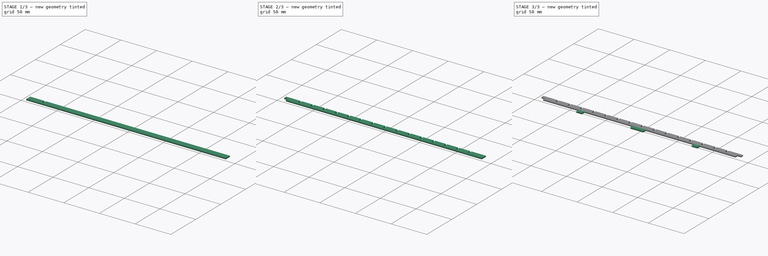
[diagram: build sequence overview — one tinted view per stage of 3, left to right]
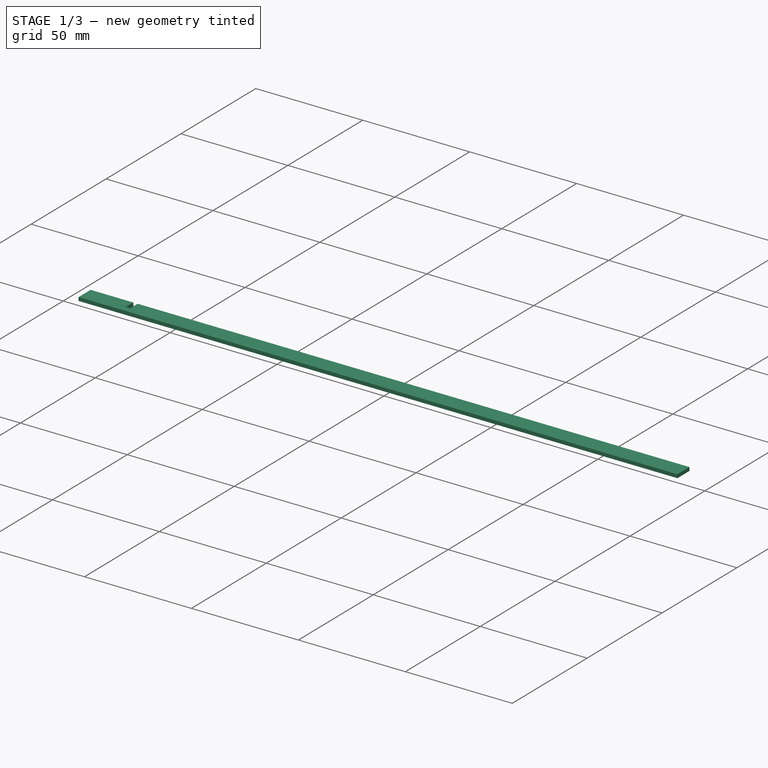
[diagram: stage 1 of 3 — iso view after this stage's code; geometry added in this stage tinted green]
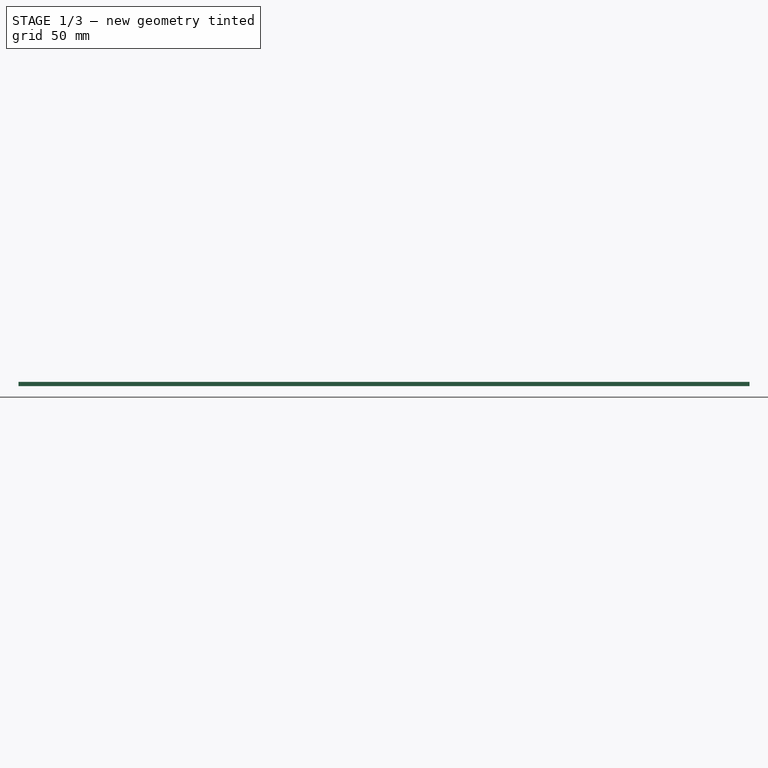
[diagram: stage 1 of 3 — front view after this stage's code; geometry added in this stage tinted green]
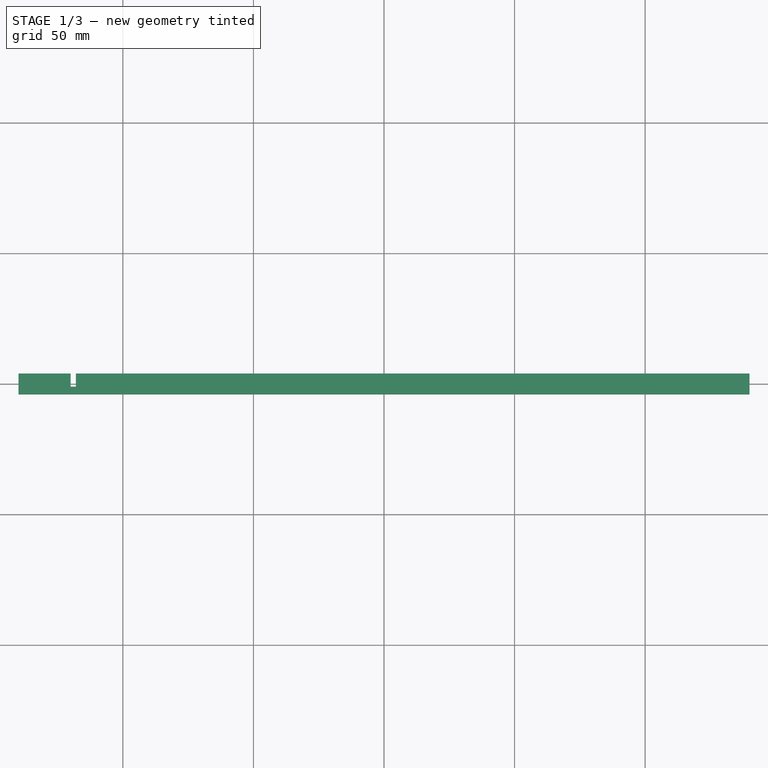
[diagram: stage 1 of 3 — top view after this stage's code; geometry added in this stage tinted green]
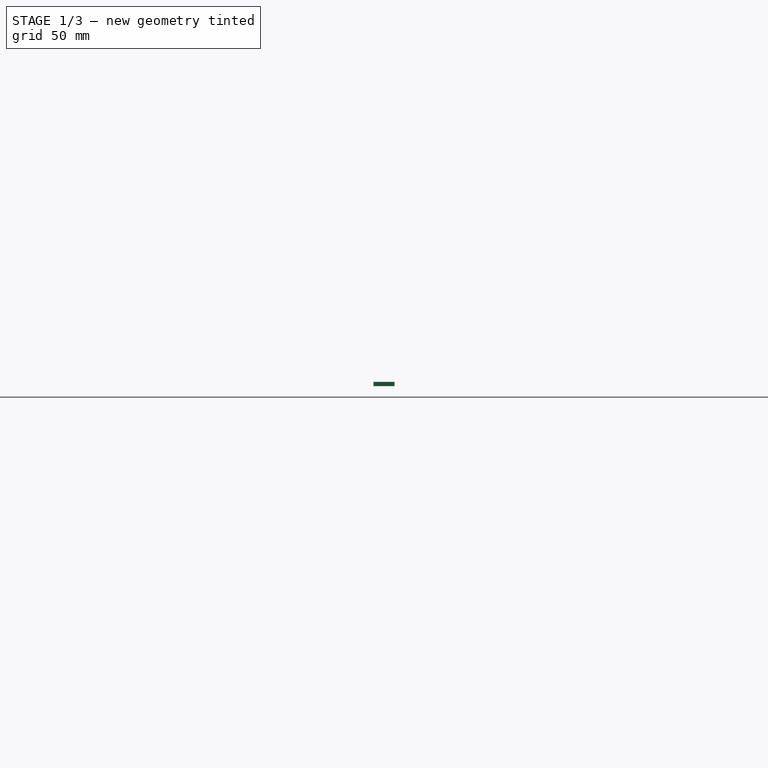
[diagram: stage 1 of 3 — right view after this stage's code; geometry added in this stage tinted green]
FCSTD DOCUMENT  (FreeCAD 2024.207R38947 (Git))
Label: frame_crisscross
License: All rights reserved
LicenseURL: https://en.wikipedia.org/wiki/All_rights_reserved
objects: Sketcher::SketchObject×4, PartDesign::Pad×2, PartDesign::Pocket×2, PartDesign::LinearPattern×2, PartDesign::Body×1
note: 27 computed .brp shape members not serialized (recipe doc carries the construction recipe); baked Part::Feature solids carry a one-line shape summary decoded from their .brp

FEATURE [Sketcher::SketchObject] Sketch  label="Crisscross-base"
  ArcFitTolerance = 1e-06
  AttachmentSupport = -> [XY_Plane]
  ExternalBSplineMaxDegree = 5
  ExternalBSplineTolerance = 0.0001
  FullyConstrained = true
  InternalTolerance = 1e-06
  InvalidShape = false
  MakeInternals = false
  MapMode = 5
  Support = -> [XY_Plane]
  TreeRank = 11
  ValidateShape = false
  sketch-geometry (4):
    g0: LineSegment StartX=-140 StartY=4 StartZ=0 EndX=140 EndY=4 EndZ=0
    g1: LineSegment StartX=140 StartY=4 StartZ=0 EndX=140 EndY=-4 EndZ=0
    g2: LineSegment StartX=140 StartY=-4 StartZ=0 EndX=-140 EndY=-4 EndZ=0
    g3: LineSegment StartX=-140 StartY=-4 StartZ=0 EndX=-140 EndY=4 EndZ=0
  constraints (10):
    c: Coincident(g0,g1)
    c: Coincident(g1,g2)
    c: Coincident(g2,g3)
    c: Coincident(g3,g0)
    c: Horizontal(g2)
    c: Vertical(g3)
    c: Symmetric(g0,g0,g-2)
    c: Symmetric(g0,g1,g-1)
    c: DistanceY(g2,g0) = 8
    c: DistanceX(g2,g1) = 280
FEATURE [PartDesign::Pad] Pad
  AddSubType = 0
  AlongSketchNormal = false
  AutoTaperInnerAngle = true
  CheckUpToFaceLimits = true
  ClaimChildren = false
  Direction = (0,0,1)
  Fit = 0
  FitJoin = 0
  InnerFit = 0
  InnerFitJoin = 0
  InvalidShape = false
  Length = 1.65
  Length2 = 10
  Linearize = true
  NewSolid = false
  Profile = -> Sketch
  ReferenceAxis = -> Sketch [N_Axis]
  Suppress = false
  TaperInnerAngle = 0
  TaperInnerAngleRev = 0
  TreeRank = 12
  Type = 0
  ValidateShape = true
  _ProfileBasedVersion = 1
  expr: Length = 2 - 0.35
FEATURE [Sketcher::SketchObject] Sketch001  label="Crisscross-cutouts"
  ArcFitTolerance = 1e-06
  AttachmentSupport = -> [Pad]
  ExternalBSplineMaxDegree = 5
  ExternalBSplineTolerance = 0.0001
  ExternalGeometry = -> [Pad]
  FullyConstrained = true
  InternalTolerance = 1e-06
  InvalidShape = false
  MakeInternals = false
  MapMode = 5
  Placement = pos=(0,0,1.65) rot=(0,0,1;0rad)
  Support = -> [Pad]
  TreeRank = 13
  ValidateShape = false
  sketch-geometry (4):
    g0: LineSegment StartX=-120 StartY=4 StartZ=0 EndX=-118 EndY=4 EndZ=0
    g1: LineSegment StartX=-118 StartY=4 StartZ=0 EndX=-118 EndY=-1 EndZ=0
    g2: LineSegment StartX=-118 StartY=-1 StartZ=0 EndX=-120 EndY=-1 EndZ=0
    g3: LineSegment StartX=-120 StartY=-1 StartZ=0 EndX=-120 EndY=4 EndZ=0
  constraints (12):
    c: Coincident(g0,g1)
    c: Coincident(g1,g2)
    c: Coincident(g2,g3)
    c: Coincident(g3,g0)
    c: Horizontal(g0)
    c: Horizontal(g2)
    c: Vertical(g1)
    c: Vertical(g3)
    c: DistanceX(g0,g0) = 2
    c: DistanceY(g1,g0) = 5
    c: PointOnObject(g0,g-3)
    c: DistanceX(g-4,g2) = 20
FEATURE [PartDesign::Pocket] Pocket
  AddSubType = 1
  AlongSketchNormal = false
  AutoTaperInnerAngle = true
  BaseFeature = -> Pad
  CheckUpToFaceLimits = true
  ClaimChildren = false
  Direction = (0,0,-1)
  Fit = 0
  FitJoin = 0
  InnerFit = 0
  InnerFitJoin = 0
  InvalidShape = false
  Length = 5
  Length2 = 10
  Linearize = true
  NewSolid = false
  Profile = -> Sketch001
  ReferenceAxis = -> Sketch001 [N_Axis]
  Suppress = false
  TaperInnerAngle = 0
  TaperInnerAngleRev = 0
  TreeRank = 14
  Type = 0
  ValidateShape = true
  _ProfileBasedVersion = 1
  _Version = 1
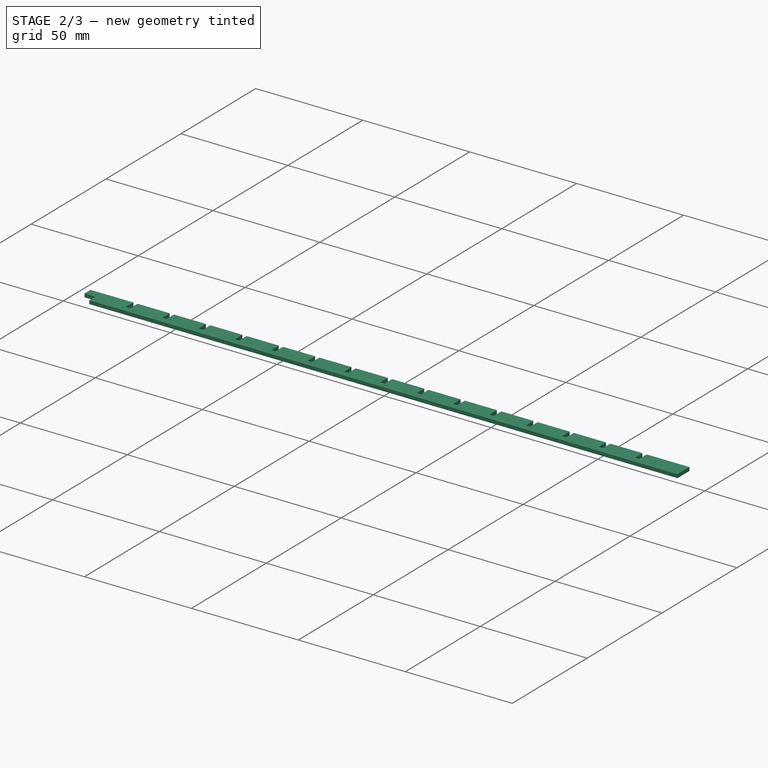
[diagram: stage 2 of 3 — iso view after this stage's code; geometry added in this stage tinted green]
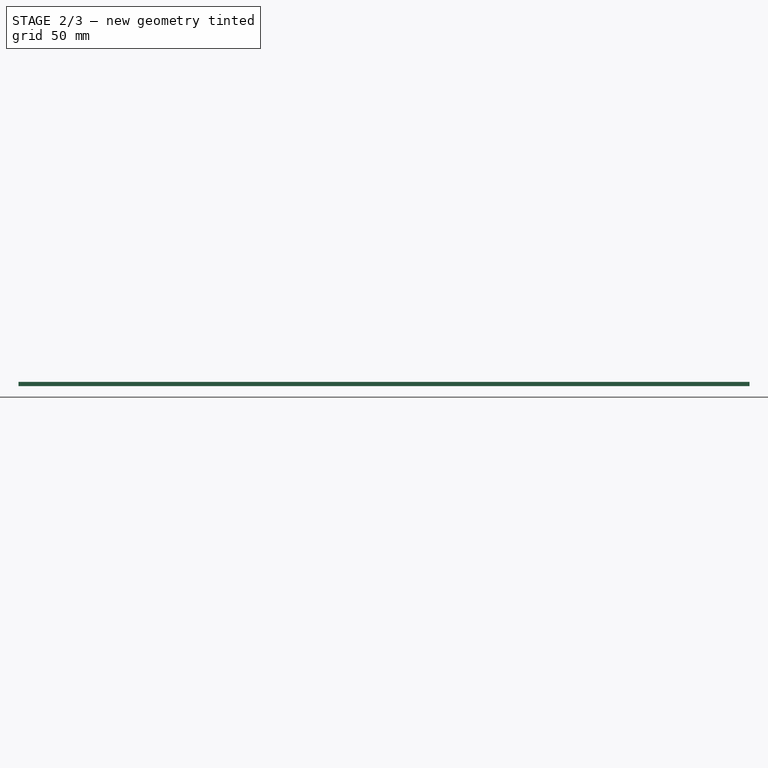
[diagram: stage 2 of 3 — front view after this stage's code; geometry added in this stage tinted green]
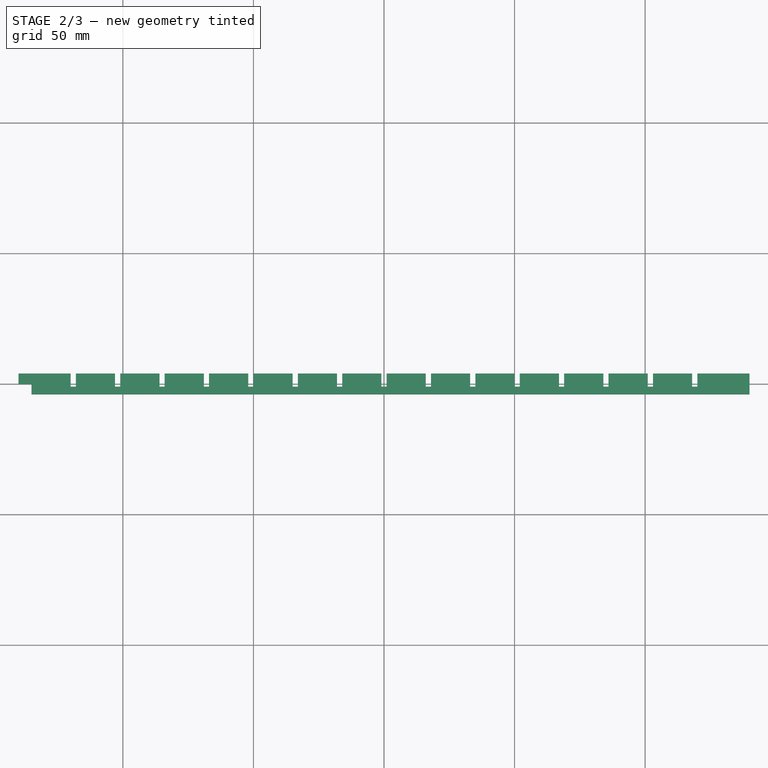
[diagram: stage 2 of 3 — top view after this stage's code; geometry added in this stage tinted green]
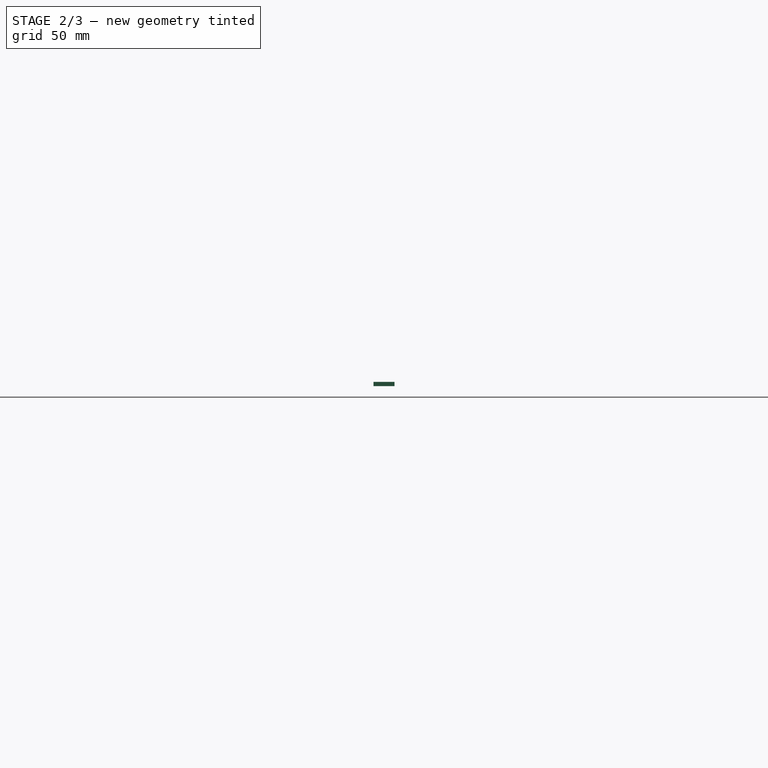
[diagram: stage 2 of 3 — right view after this stage's code; geometry added in this stage tinted green]
FEATURE [PartDesign::LinearPattern] LinearPattern
  AddSubType = 0
  BaseFeature = -> Pocket
  CopyShape = false
  Direction = -> Sketch001 [H_Axis]
  InvalidShape = false
  Length = 238
  NewSolid = false
  Occurrences = 15
  OriginalSubs = -> [Pocket]
  Originals = -> [Pocket]
  ParallelTransform = true
  SubTransform = true
  Suppress = false
  TreeRank = 15
  ValidateShape = true
  _Version = 3
  expr: Length = 280 - 2 * 20 - 2
FEATURE [Sketcher::SketchObject] Sketch002  label="Crisscross-end-holders"
  ArcFitTolerance = 1e-06
  AttachmentSupport = -> [LinearPattern]
  ExternalBSplineMaxDegree = 5
  ExternalBSplineTolerance = 0.0001
  ExternalGeometry = -> [LinearPattern]
  FullyConstrained = true
  InternalTolerance = 1e-06
  InvalidShape = false
  MakeInternals = false
  MapMode = 5
  Placement = pos=(0,0,1.65) rot=(0,0,1;0rad)
  Support = -> [LinearPattern]
  TreeRank = 16
  ValidateShape = false
  sketch-geometry (4):
    g0: LineSegment StartX=-140 StartY=1e-16 StartZ=0 EndX=-135 EndY=1e-16 EndZ=0
    g1: LineSegment StartX=-135 StartY=1e-16 StartZ=0 EndX=-135 EndY=-4 EndZ=0
    g2: LineSegment StartX=-135 StartY=-4 StartZ=0 EndX=-140 EndY=-4 EndZ=0
    g3: LineSegment StartX=-140 StartY=-4 StartZ=0 EndX=-140 EndY=0 EndZ=0
  constraints (11):
    c: Coincident(g0,g1)
    c: Coincident(g1,g2)
    c: Coincident(g2,g3)
    c: Coincident(g3,g0)
    c: Horizontal(g0)
    c: Horizontal(g2)
    c: Vertical(g1)
    c: Vertical(g3)
    c: Coincident(g-4,g2)
    c: DistanceY(g1,g0) = 4
    c: DistanceX(g2,g1) = 5
FEATURE [PartDesign::Pocket] Pocket001
  AddSubType = 1
  AlongSketchNormal = false
  AutoTaperInnerAngle = true
  BaseFeature = -> LinearPattern
  CheckUpToFaceLimits = true
  ClaimChildren = false
  Direction = (0,0,-1)
  Fit = 0
  FitJoin = 0
  InnerFit = 0
  InnerFitJoin = 0
  InvalidShape = false
  Length = 5
  Length2 = 10
  Linearize = true
  NewSolid = false
  Profile = -> Sketch002
  ReferenceAxis = -> Sketch002 [N_Axis]
  Suppress = false
  TaperInnerAngle = 0
  TaperInnerAngleRev = 0
  TreeRank = 17
  Type = 0
  ValidateShape = true
  _ProfileBasedVersion = 1
  _Version = 1
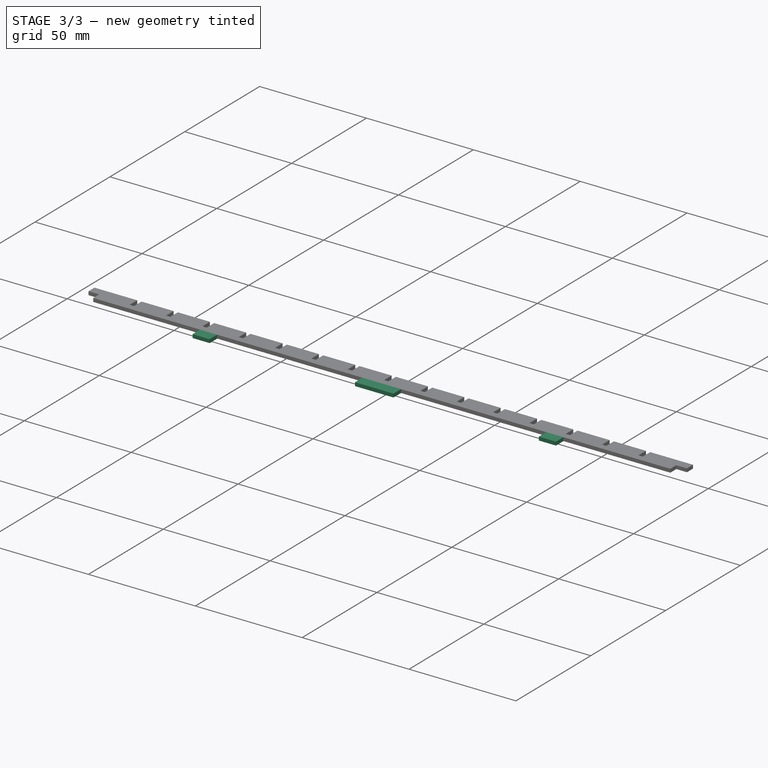
[diagram: stage 3 of 3 — iso view after this stage's code; geometry added in this stage tinted green]
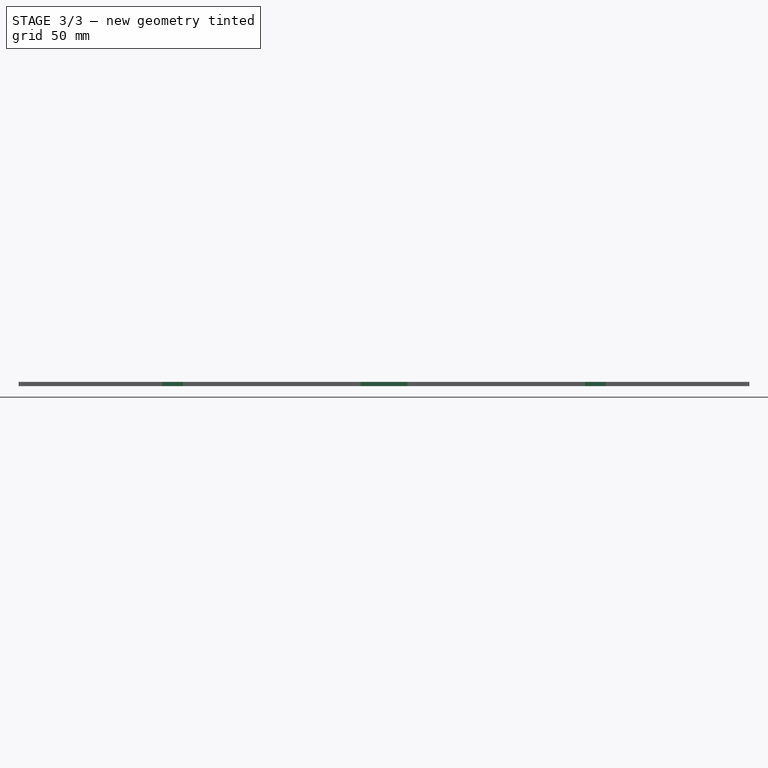
[diagram: stage 3 of 3 — front view after this stage's code; geometry added in this stage tinted green]
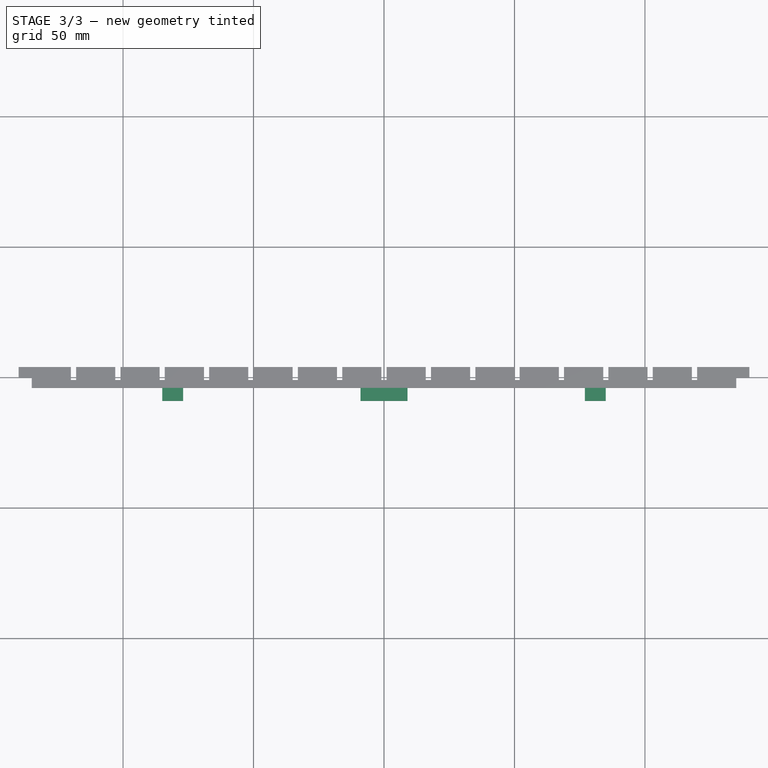
[diagram: stage 3 of 3 — top view after this stage's code; geometry added in this stage tinted green]
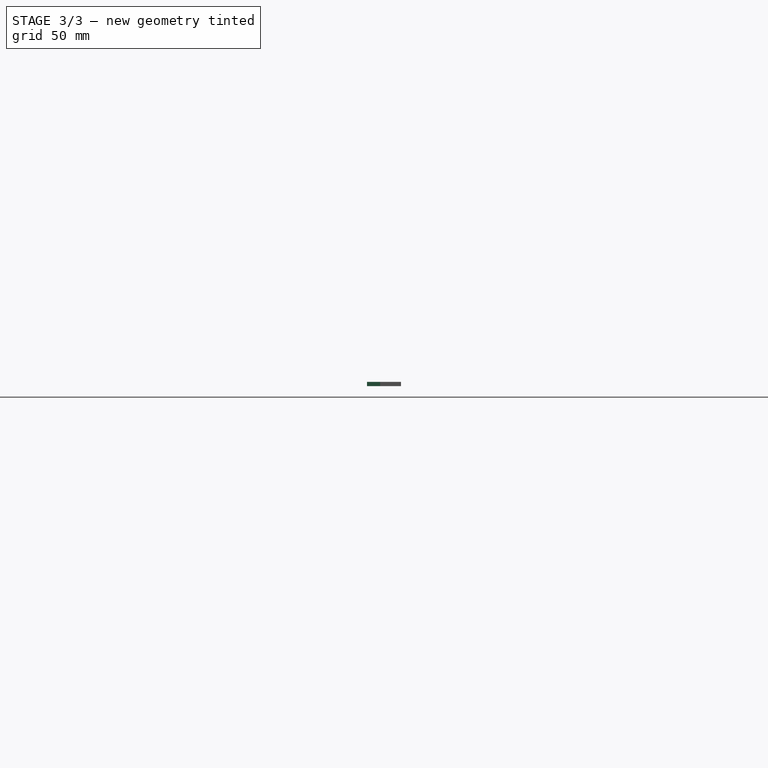
[diagram: stage 3 of 3 — right view after this stage's code; geometry added in this stage tinted green]
FEATURE [PartDesign::LinearPattern] LinearPattern001
  AddSubType = 0
  BaseFeature = -> Pocket001
  CopyShape = false
  Direction = -> Sketch002 [H_Axis]
  InvalidShape = false
  Length = 275
  NewSolid = false
  Occurrences = 2
  OriginalSubs = -> [Pocket001]
  Originals = -> [Pocket001]
  ParallelTransform = true
  SubTransform = true
  Suppress = false
  TreeRank = 18
  ValidateShape = true
  _Version = 3
  expr: Length = 280 - 5
FEATURE [Sketcher::SketchObject] Sketch003  label="Crisscross-bed-stabilizers"
  ArcFitTolerance = 1e-06
  AttachmentSupport = -> [LinearPattern001]
  ExternalBSplineMaxDegree = 5
  ExternalBSplineTolerance = 0.0001
  ExternalGeometry = -> [LinearPattern001]
  FullyConstrained = true
  InternalTolerance = 1e-06
  InvalidShape = false
  MakeInternals = false
  MapMode = 5
  Placement = pos=(0,-4,0) rot=(1,0,0;1.5708rad)
  Support = -> [LinearPattern001]
  TreeRank = 19
  ValidateShape = false
  sketch-geometry (12):
    g0: LineSegment StartX=-85 StartY=1.65 StartZ=0 EndX=-77 EndY=1.65 EndZ=0
    g1: LineSegment StartX=-77 StartY=1.65 StartZ=0 EndX=-77 EndY=0 EndZ=0
    g2: LineSegment StartX=-77 StartY=0 StartZ=0 EndX=-85 EndY=0 EndZ=0
    g3: LineSegment StartX=-85 StartY=0 StartZ=0 EndX=-85 EndY=1.65 EndZ=0
    g4: LineSegment StartX=-9 StartY=1.65 StartZ=0 EndX=9 EndY=1.65 EndZ=0
    g5: LineSegment StartX=9 StartY=1.65 StartZ=0 EndX=9 EndY=0 EndZ=0
    g6: LineSegment StartX=9 StartY=0 StartZ=0 EndX=-9 EndY=0 EndZ=0
    g7: LineSegment StartX=-9 StartY=0 StartZ=0 EndX=-9 EndY=1.65 EndZ=0
    g8: LineSegment StartX=77 StartY=1.65 StartZ=0 EndX=85 EndY=1.65 EndZ=0
    g9: LineSegment StartX=85 StartY=1.65 StartZ=0 EndX=85 EndY=0 EndZ=0
    g10: LineSegment StartX=85 StartY=0 StartZ=0 EndX=77 EndY=0 EndZ=0
    g11: LineSegment StartX=77 StartY=0 StartZ=0 EndX=77 EndY=1.65 EndZ=0
  constraints (36):
    c: Coincident(g0,g1)
    c: Coincident(g1,g2)
    c: Coincident(g2,g3)
    c: Coincident(g3,g0)
    c: Horizontal(g0)
    c: Horizontal(g2)
    c: Vertical(g1)
    c: Vertical(g3)
    c: PointOnObject(g0,g-3)
    c: PointOnObject(g1,g-4)
    c: DistanceX(g0,g0) = 8
    c: DistanceX(g-3,g0) = 50
    c: Coincident(g4,g5)
    c: Coincident(g5,g6)
    c: Coincident(g6,g7)
    c: Coincident(g7,g4)
    c: Horizontal(g4)
    c: Horizontal(g6)
    c: Vertical(g5)
    c: Vertical(g7)
    c: PointOnObject(g4,g-3)
    c: PointOnObject(g5,g-4)
    c: DistanceX(g0,g4) = 68
    c: DistanceX(g4,g4) = 18
    c: Coincident(g8,g9)
    c: Coincident(g9,g10)
    c: Coincident(g10,g11)
    c: Coincident(g11,g8)
    c: Horizontal(g8)
    c: Horizontal(g10)
    c: Vertical(g9)
    c: Vertical(g11)
    c: PointOnObject(g8,g-3)
    c: PointOnObject(g9,g-4)
    c: DistanceX(g4,g8) = 68
    c: DistanceX(g8,g8) = 8
FEATURE [PartDesign::Pad] Pad001
  AddSubType = 0
  AlongSketchNormal = false
  AutoTaperInnerAngle = true
  BaseFeature = -> LinearPattern001
  CheckUpToFaceLimits = true
  ClaimChildren = false
  Direction = (0,-1,2e-16)
  Fit = 0
  FitJoin = 0
  InnerFit = 0
  InnerFitJoin = 0
  InvalidShape = false
  Length = 5
  Length2 = 10
  Linearize = true
  NewSolid = false
  Profile = -> Sketch003
  ReferenceAxis = -> Sketch003 [N_Axis]
  Suppress = false
  TaperInnerAngle = 0
  TaperInnerAngleRev = 0
  TreeRank = 20
  Type = 0
  ValidateShape = true
  _ProfileBasedVersion = 1
FEATURE [PartDesign::Body] Body  label="frame_crisscross"
  AutoGroupSolids = false
  ClaimAllChildren = false
  ExportMode = 0
  Group = -> [Sketch,Pad,Sketch001,Pocket,LinearPattern,Sketch002,Pocket001,LinearPattern001,Sketch003,Pad001]
  InvalidShape = false
  Origin = -> Origin
  Tip = -> Pad001
  TreeRank = 10
  ValidateShape = false
  _ExportChildren = -> [Pad,Pocket,LinearPattern,Pocket001,LinearPattern001,Pad001]
  _GroupVersion = 1
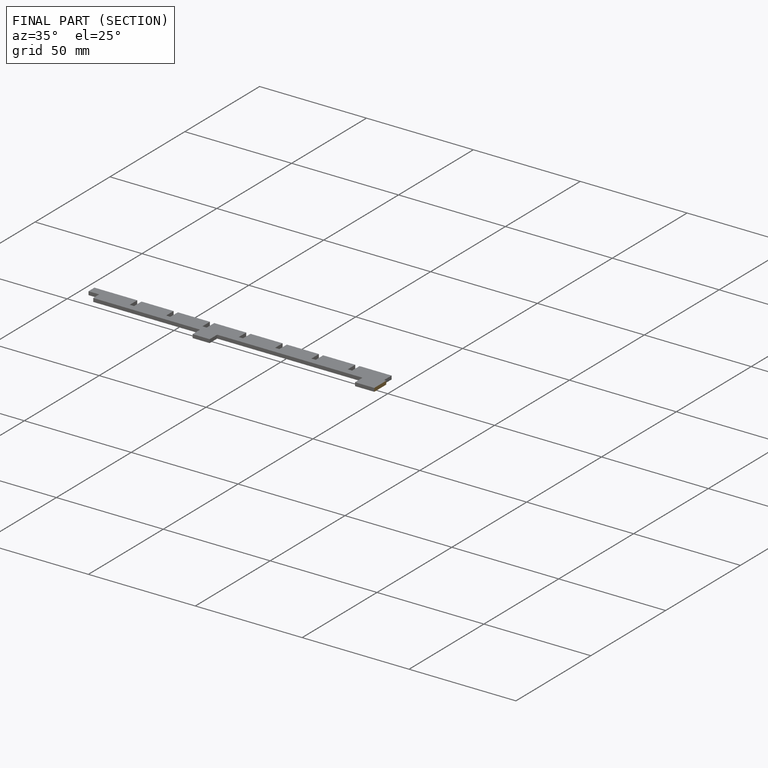
[diagram: finished part — half-section view (interior)]
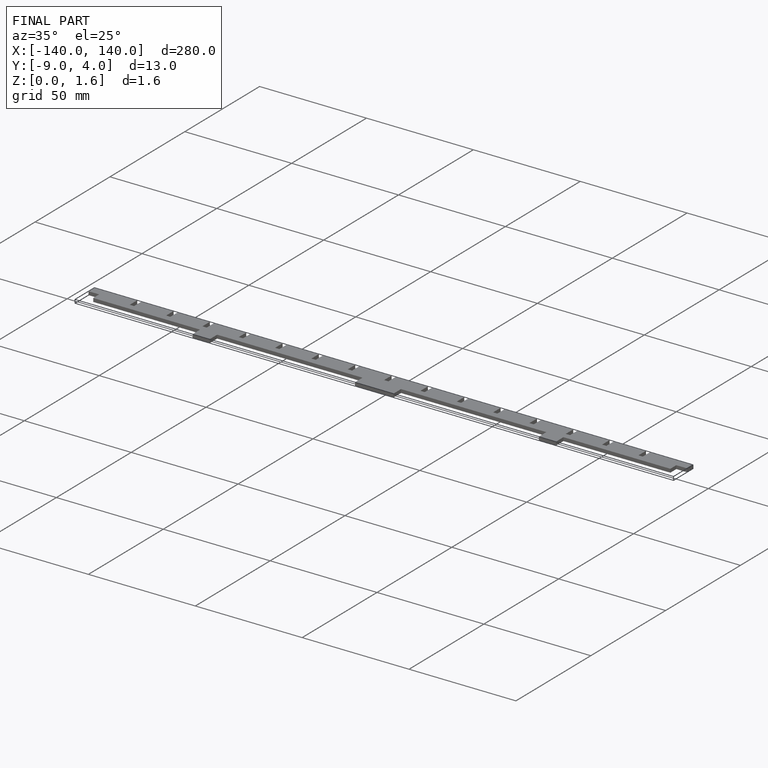
[diagram: finished part — iso view with bounding-box wireframe]
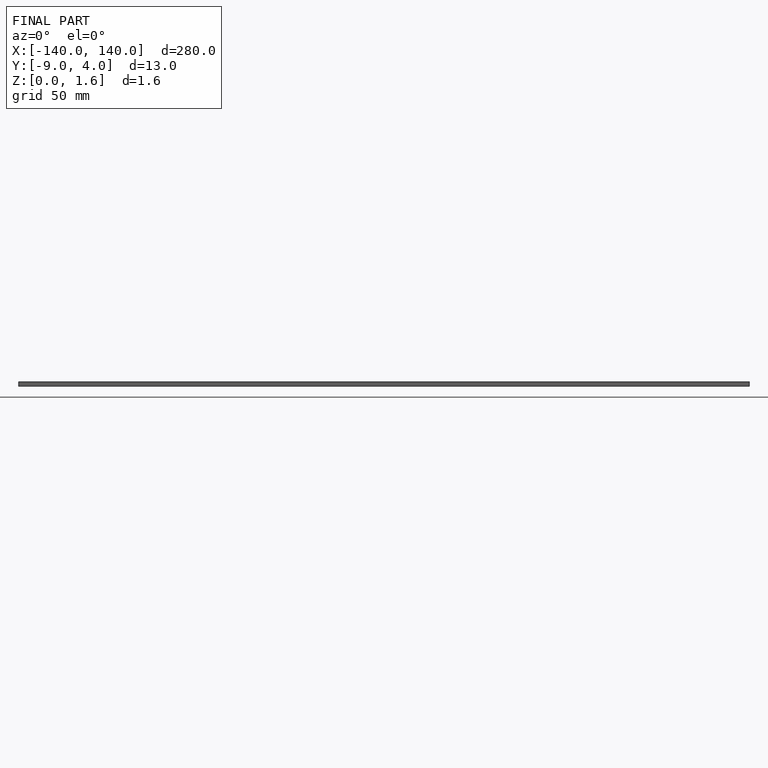
[diagram: finished part — front view with bounding-box wireframe]
